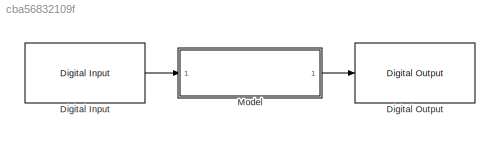
MODEL slx_cba56832109f
KIND model
BLOCK [Reference] Digital Input  REF=arduinolib/Digital Input
  Ports = [0, 1]
  SourceBlock = arduinolib/Digital Input
  SourceType = Arduino Digital Input
  pinNumber = 8
  sampleTime = 1
BLOCK [Reference] Digital Output  REF=arduinolib/Digital Output
  Ports = [1]
  SourceBlock = arduinolib/Digital Output
  SourceType = Arduino Digital Output
  pinNumber = 9
BLOCK [ModelReference] Model
  CopyOfModelName = StateMachine_MR.slx
  DefaultDataLogging = on
  ModelNameDialog = StateMachine_MR.slx
  ModelReferenceVersion = 1.7
  Ports = [1, 1]
LINE Digital Input:1 -> Model:1
LINE Model:1 -> Digital Output:1
